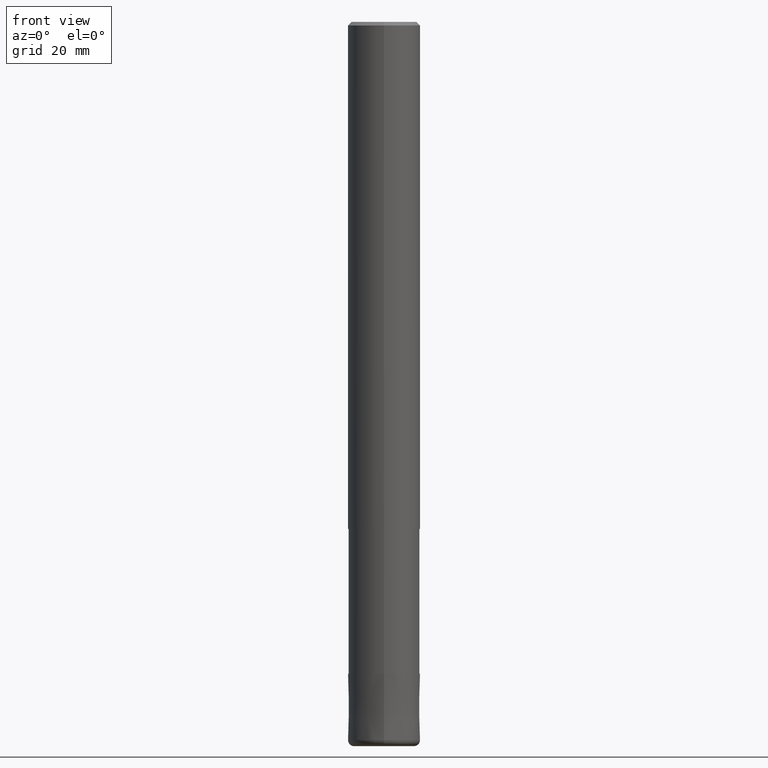
[diagram: clean part render]
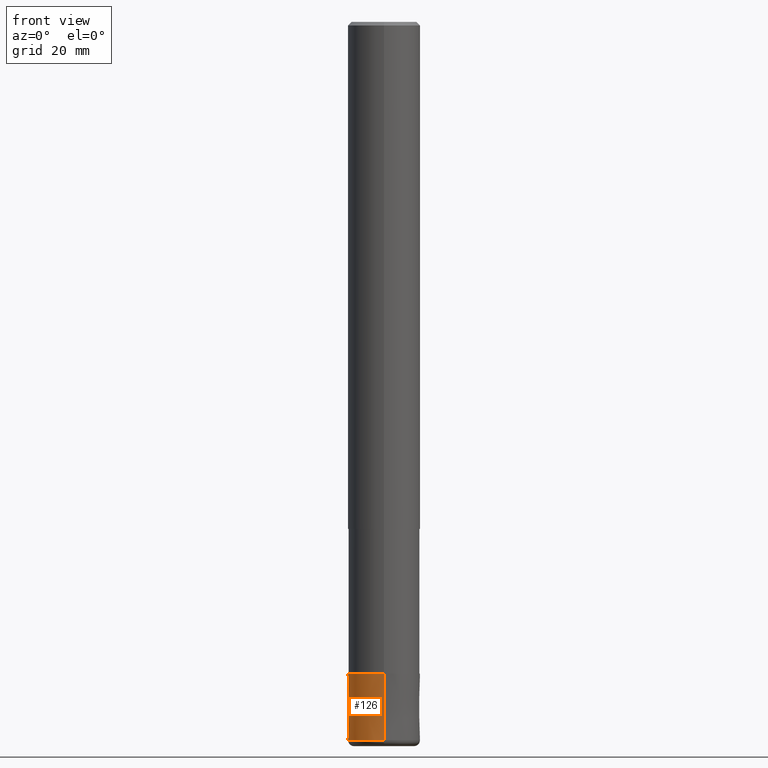
[diagram: same view with one face highlighted and labeled with its STEP entity id]
A machine part, front view. The second image highlights one B-rep face of the part: STEP entity #126.
In plain terms, the highlighted conical surface has half-angle 0.001 deg.
Its self-contained STEP definition (entity closure, byte-faithful):
#122=VERTEX_POINT('',#263);
#126=ADVANCED_FACE('',(#267),#268,.T.);
#134=VERTEX_POINT('',#278);
#136=EDGE_CURVE('',#150,#122,#280,.T.);
#138=EDGE_CURVE('',#134,#122,#282,.T.);
#150=VERTEX_POINT('',#296);
#158=VERTEX_POINT('',#304);
#192=EDGE_CURVE('',#158,#150,#343,.T.);
#202=EDGE_CURVE('',#134,#158,#354,.T.);
#263=CARTESIAN_POINT('',(0.0,6.0,-119.0));
#267=FACE_OUTER_BOUND('',#420,.T.);
#268=CONICAL_SURFACE('',#421,5.99995,9.09090909063747E-006);
#278=CARTESIAN_POINT('',(7.34763812293426E-016,-6.0,-119.0));
#280=LINE('',#434,#435);
#282=CIRCLE('',#438,6.0);
#296=CARTESIAN_POINT('',(0.0,5.9999,-108.0));
#304=CARTESIAN_POINT('',(7.34751566229888E-016,-5.9999,-108.0));
#343=CIRCLE('',#515,5.9999);
#354=LINE('',#530,#531);
#420=EDGE_LOOP('',(#586,#587,#588,#589));
#421=AXIS2_PLACEMENT_3D('',#590,#591,#592);
#434=CARTESIAN_POINT('',(-7.34757689261658E-016,5.99995,-113.5));
#435=VECTOR('',#609,1.0);
#438=AXIS2_PLACEMENT_3D('',#610,#611,#612);
#515=AXIS2_PLACEMENT_3D('',#689,#690,#691);
#530=CARTESIAN_POINT('',(7.34757689261657E-016,-5.99995,-113.5));
#531=VECTOR('',#707,1.0);
#586=ORIENTED_EDGE('',*,*,#136,.T.);
#587=ORIENTED_EDGE('',*,*,#138,.F.);
#588=ORIENTED_EDGE('',*,*,#202,.T.);
#589=ORIENTED_EDGE('',*,*,#192,.T.);
#590=CARTESIAN_POINT('',(0.0,0.0,-113.5));
#591=DIRECTION('',(0.0,-0.0,-1.0));
#592=DIRECTION('',(0.0,1.0,0.0));
#609=DIRECTION('',(-1.11327850342629E-021,9.09090909051225E-006,-0.999999999958678));
#610=CARTESIAN_POINT('',(0.0,0.0,-119.0));
#611=DIRECTION('',(0.0,0.0,-1.0));
#612=DIRECTION('',(0.0,1.0,0.0));
#689=CARTESIAN_POINT('',(0.0,0.0,-108.0));
#690=DIRECTION('',(0.0,0.0,-1.0));
#691=DIRECTION('',(0.0,1.0,0.0));
#707=DIRECTION('',(-1.11327850342629E-021,9.09090909051225E-006,0.999999999958678));